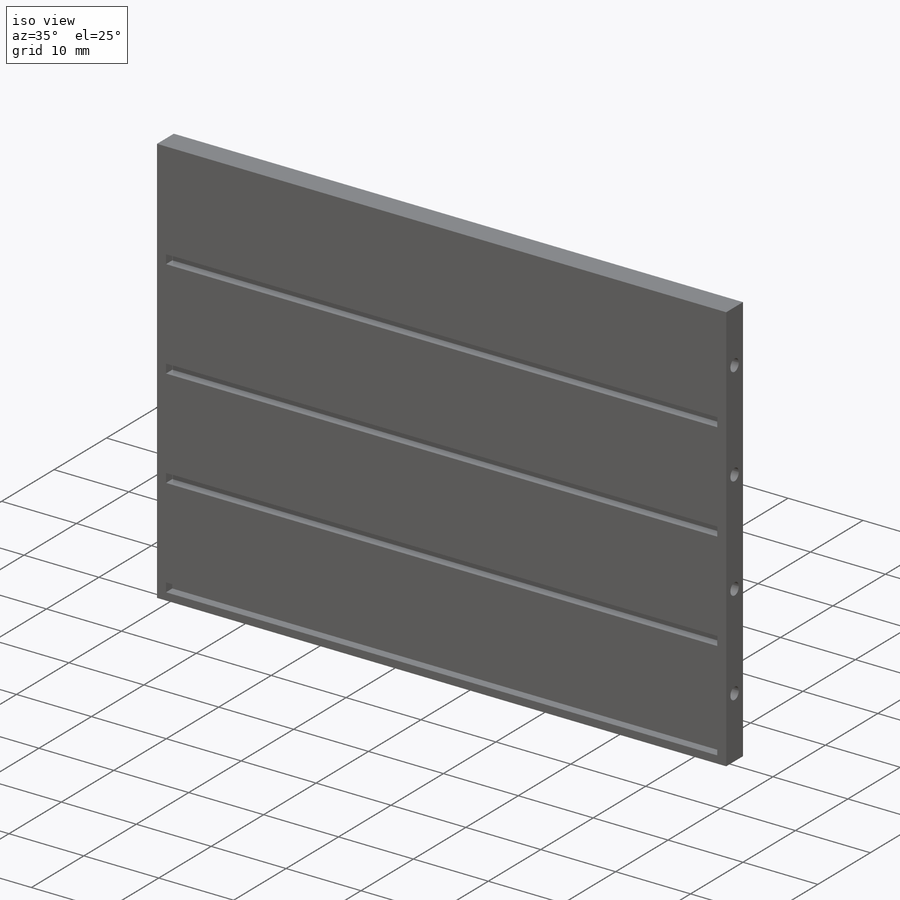
[diagram: iso view]
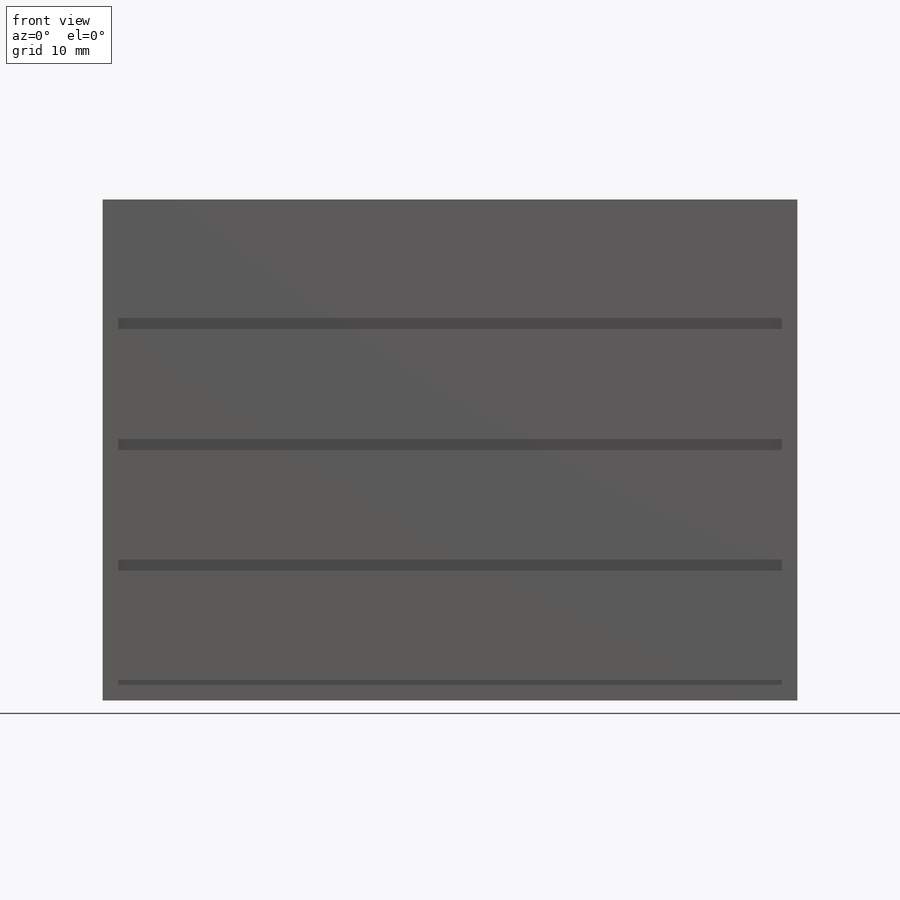
[diagram: front view]
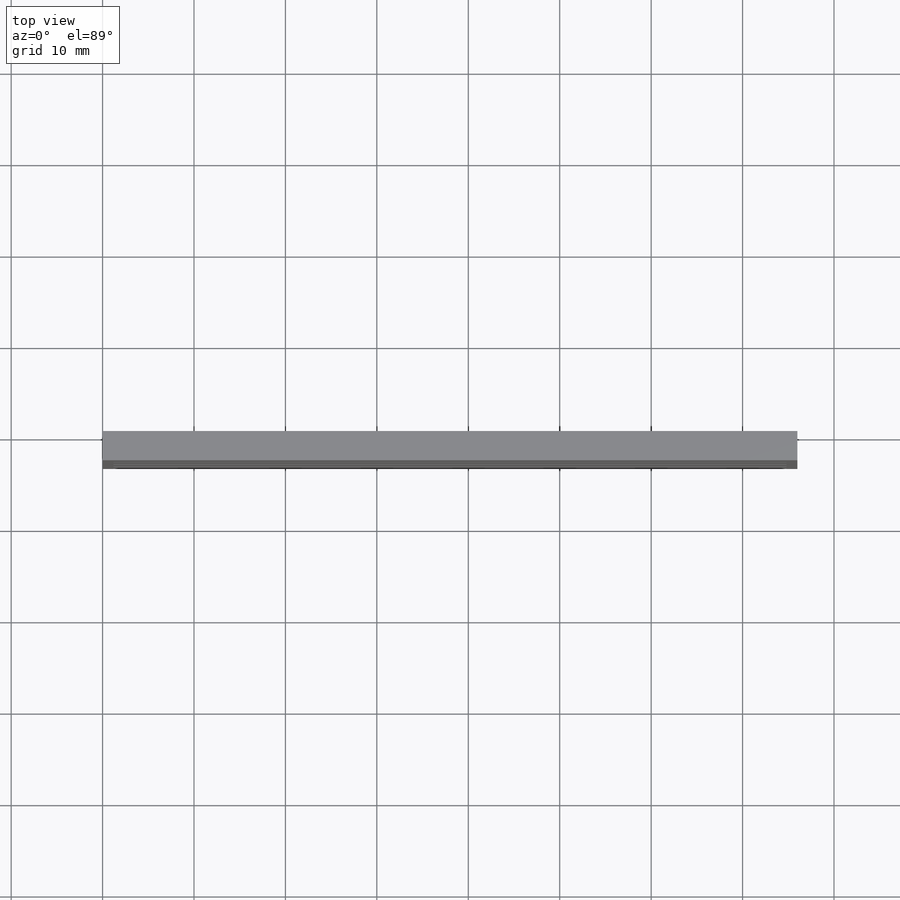
[diagram: top view]
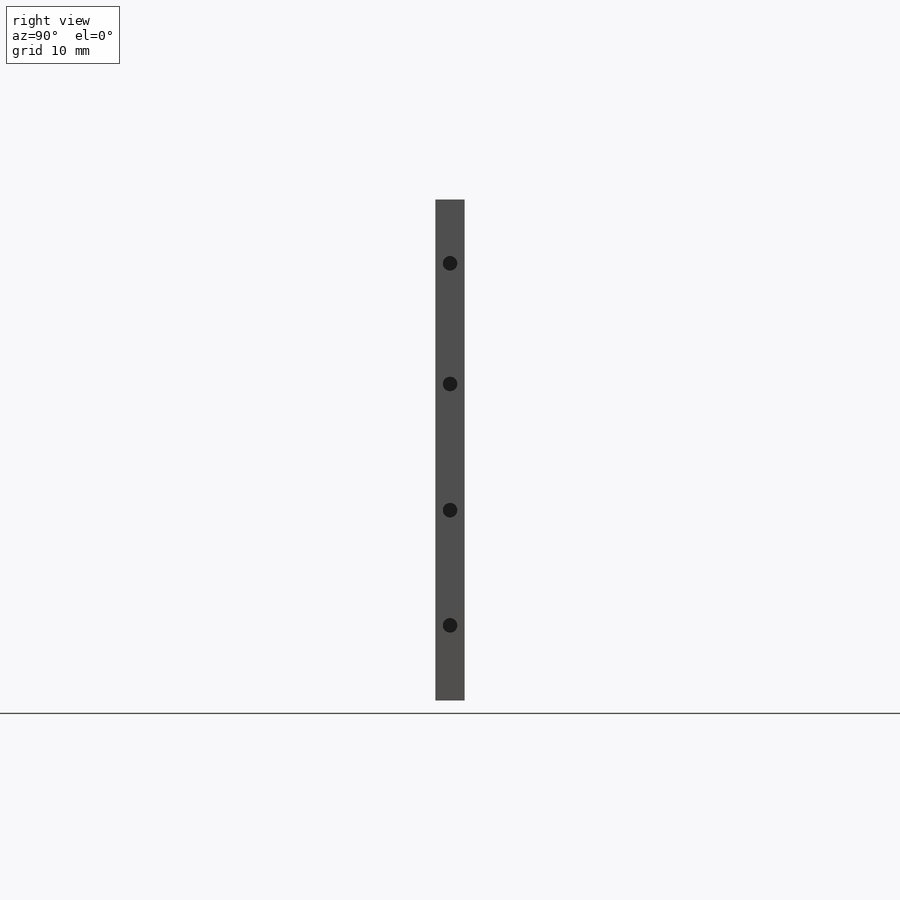
[diagram: right view]
SOLIDWORKS PART (.sldprt)
format: sldprt  version: not decoded by parser v0  size: 194,048 bytes
history: native  units: mm
features: sketch x3, cut_extrude x2, material x1, extrude x1 (+13 scaffold rows collapsed)
feature tree (20):
  scaffold x13  (default folders/planes/origin — collapsed)
  material  "Material <not specified>"
  sketch  "Sketch1"  dims[c1.D1=56.0mm c1.D2=80.0mm c2.D1=76.0mm]
  extrude  "Boss-Extrude1"  Depth=3.2mm
  sketch  "Sketch2"  dims[c1.D1=1.2mm c1.D2=1.2mm c2.D1=1.2mm c2.D2=1.2mm c3.D1=1.2mm c3.D2=1.2mm c4.D1=1.2mm c4.D2=1.2mm c5.D1=1.2mm c5.D2=1.2mm c6.D1=1.2mm c6.D2=1.2mm c7.D1=1.2mm c7.D2=1.2mm c8.D1=1.2mm c8.D2=1.2mm c9.D1=1.0mm]
  cut_extrude  "Cut-Extrude1"  Depth=73.6mm
  sketch  "Sketch3"  dims[D1=~25.633581mm]
  cut_extrude  "Cut-Extrude2"  Depth=10mm
decode coverage: 6 of 6 modeling features carry decoded parameters
note: ~ marks probable driven/reference dimensions
note: suppression state not decoded; provenance and decode notes live in map.json
